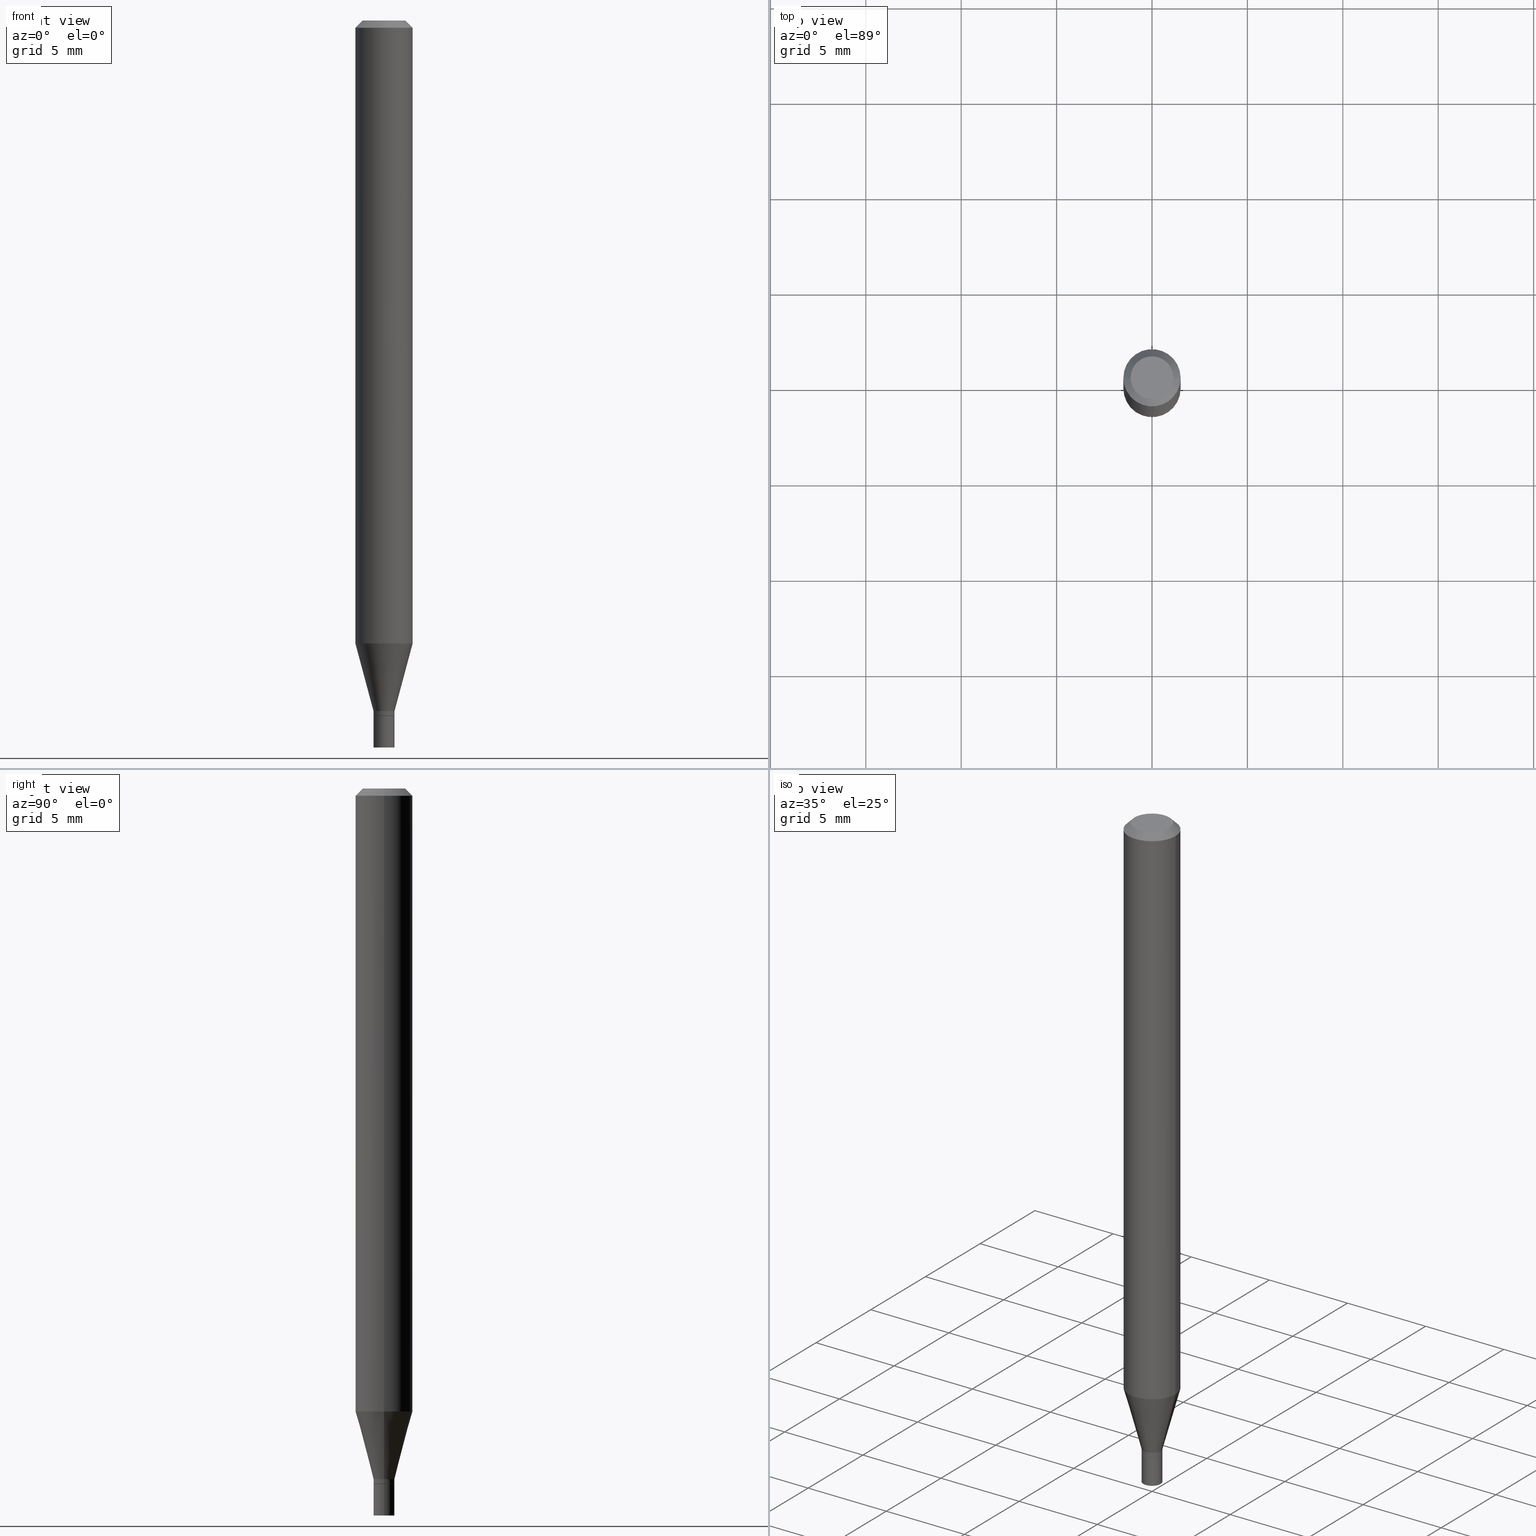
[diagram: canonical four-view strip — front | top / right | iso, engineering-drawing reading convention]
A machine part, canonical four-view strip (front | top / right | iso — engineering-drawing reading convention). The complete STEP part file that produces these views, byte-faithful:
ISO-10303-21;
HEADER;
FILE_DESCRIPTION (( 'STEP AP203' ),
    '1' );
FILE_NAME ('09282.STEP',
    '2024-03-14T18:18:52',
    ( '' ),
    ( '' ),
    'SwSTEP 2.0',
    'SolidWorks 2023',
    '' );
FILE_SCHEMA (( 'CONFIG_CONTROL_DESIGN' ));
ENDSEC;

DATA;
#1 = DIRECTION ( 'NONE',  ( 1.000000000000000000, -6.982962677686269866E-15, 0.000000000000000000 ) ) ;
#2 = AXIS2_PLACEMENT_3D ( 'NONE', #329, #108, #1 ) ;
#3 = AXIS2_PLACEMENT_3D ( 'NONE', #307, #148, #268 ) ;
#4 = CARTESIAN_POINT ( 'NONE',  ( 0.02164999999999991584, -5.126542049823390117E-15, -1.425000000000000266 ) ) ;
#5 = CARTESIAN_POINT ( 'NONE',  ( 0.000000000000000000, 0.000000000000000000, 0.000000000000000000 ) ) ;
#6 = AXIS2_PLACEMENT_3D ( 'NONE', #21, #282, #125 ) ;
#7 = EDGE_LOOP ( 'NONE', ( #410, #218, #166, #262 ) ) ;
#8 = EDGE_CURVE ( 'NONE', #136, #305, #292, .T. ) ;
#9 = DIRECTION ( 'NONE',  ( 1.000000000000000000, -6.982962677686266711E-15, 4.876176775795936353E-29 ) ) ;
#10 = ORIENTED_EDGE ( 'NONE', *, *, #8, .F. ) ;
#11 = DIRECTION ( 'NONE',  ( -2.445468806185136597E-29, 3.491481338843145583E-15, 1.000000000000000000 ) ) ;
#12 = ORIENTED_EDGE ( 'NONE', *, *, #106, .F. ) ;
#13 = DIRECTION ( 'NONE',  ( 1.000000000000000000, -6.982962677686267499E-15, 4.876176775795936353E-29 ) ) ;
#14 = DATE_AND_TIME ( #437, #58 ) ;
#15 = CARTESIAN_POINT ( 'NONE',  ( 3.143457691459330650E-29, -4.488024480792461155E-15, -1.285421299796924099 ) ) ;
#16 = VECTOR ( 'NONE', #145, 39.37007874015748143 ) ;
#17 = DIRECTION ( 'NONE',  ( -2.445468806185136597E-29, 3.491481338843145583E-15, 1.000000000000000000 ) ) ;
#18 = DIRECTION ( 'NONE',  ( 2.438088387897960049E-29, -3.491481338843145188E-15, -1.000000000000000000 ) ) ;
#19 = CARTESIAN_POINT ( 'NONE',  ( 3.576687321579069994E-29, -5.368277968210015545E-15, -1.500000000000000222 ) ) ;
#20 = DATE_AND_TIME ( #117, #66 ) ;
#21 = CARTESIAN_POINT ( 'NONE',  ( 0.000000000000000000, 0.000000000000000000, 0.000000000000000000 ) ) ;
#22 = CARTESIAN_POINT ( 'NONE',  ( -0.02164999999999991584, -4.821528405559422650E-15, -1.425000000000000266 ) ) ;
#23 = EDGE_LOOP ( 'NONE', ( #43, #320, #103, #412 ) ) ;
#24 = MECHANICAL_CONTEXT ( 'NONE', #303, 'mechanical' ) ;
#25 = CARTESIAN_POINT ( 'NONE',  ( 3.509247736875672093E-29, -5.010275721239914824E-15, -1.435000000000000497 ) ) ;
#26 =( GEOMETRIC_REPRESENTATION_CONTEXT ( 3 ) GLOBAL_UNCERTAINTY_ASSIGNED_CONTEXT ( ( #403 ) ) GLOBAL_UNIT_ASSIGNED_CONTEXT ( ( #358, #255, #400 ) ) REPRESENTATION_CONTEXT ( 'NONE', 'WORKASPACE' ) );
#27 = ORIENTED_EDGE ( 'NONE', *, *, #206, .T. ) ;
#28 = EDGE_CURVE ( 'NONE', #305, #136, #246, .T. ) ;
#29 = APPROVAL_DATE_TIME ( #59, #107 ) ;
#30 = DIRECTION ( 'NONE',  ( 0.7071067811865537900, -7.319954787623276556E-15, -0.7071067811865412445 ) ) ;
#31 = EDGE_LOOP ( 'NONE', ( #344, #394, #276, #185 ) ) ;
#32 = PLANE ( 'NONE',  #388 ) ;
#33 = AXIS2_PLACEMENT_3D ( 'NONE', #47, #432, #366 ) ;
#34 = CC_DESIGN_APPROVAL ( #107, ( #336 ) ) ;
#35 = ORIENTED_EDGE ( 'NONE', *, *, #200, .T. ) ;
#36 = APPROVAL_STATUS ( 'not_yet_approved' ) ;
#37 = EDGE_CURVE ( 'NONE', #188, #269, #402, .T. ) ;
#38 = LINE ( 'NONE', #423, #225 ) ;
#39 = CARTESIAN_POINT ( 'NONE',  ( -0.02164999999999991584, -4.444988700442772550E-15, -1.425000000000000266 ) ) ;
#40 = PERSON_AND_ORGANIZATION ( #161, #367 ) ;
#41 = ADVANCED_FACE ( 'NONE', ( #153 ), #332, .F. ) ;
#42 = DIRECTION ( 'NONE',  ( 0.7071067811865656694, -2.468850131082446387E-15, 0.7071067811865294761 ) ) ;
#43 = ORIENTED_EDGE ( 'NONE', *, *, #288, .T. ) ;
#44 = CARTESIAN_POINT ( 'NONE',  ( -0.02114999999999999519, -4.859995932626654409E-15, -1.435000000000000497 ) ) ;
#45 = EDGE_LOOP ( 'NONE', ( #27, #308, #204, #140 ) ) ;
#46 = EDGE_CURVE ( 'NONE', #372, #305, #337, .T. ) ;
#47 = CARTESIAN_POINT ( 'NONE',  ( 3.668203209277704895E-29, -5.237222008264718177E-15, -1.500000000000000222 ) ) ;
#48 = AXIS2_PLACEMENT_3D ( 'NONE', #220, #421, #167 ) ;
#49 = EDGE_LOOP ( 'NONE', ( #375, #244, #217, #132 ) ) ;
#50 = ORIENTED_EDGE ( 'NONE', *, *, #67, .F. ) ;
#51 = DIRECTION ( 'NONE',  ( -2.438088387897960049E-29, 3.491481338843145188E-15, 1.000000000000000000 ) ) ;
#52 = DIRECTION ( 'NONE',  ( 1.000000000000000000, -6.982962677686266711E-15, 0.000000000000000000 ) ) ;
#53 = CARTESIAN_POINT ( 'NONE',  ( 3.484793048813820547E-29, -4.975360907851483175E-15, -1.425000000000000266 ) ) ;
#54 = DIRECTION ( 'NONE',  ( -2.445468806185136877E-29, 3.491481338843145188E-15, 1.000000000000000000 ) ) ;
#55 = CC_DESIGN_DATE_AND_TIME_ASSIGNMENT ( #139, #434, ( #300 ) ) ;
#56 = CYLINDRICAL_SURFACE ( 'NONE', #287, 0.02165000000000005115 ) ;
#57 = EDGE_CURVE ( 'NONE', #209, #137, #162, .T. ) ;
#58 = LOCAL_TIME ( 14, 18, 52.00000000000000000, #426 ) ;
#59 = DATE_AND_TIME ( #119, #234 ) ;
#60 = DIRECTION ( 'NONE',  ( 1.000000000000000000, -6.982962677686267499E-15, 4.876176775795936353E-29 ) ) ;
#61 = CIRCLE ( 'NONE', #319, 0.05904999999999999832 ) ;
#62 = CIRCLE ( 'NONE', #352, 0.04404999999999999888 ) ;
#63 = CYLINDRICAL_SURFACE ( 'NONE', #173, 0.05904999999999999832 ) ;
#64 = VECTOR ( 'NONE', #42, 39.37007874015748143 ) ;
#65 = ADVANCED_FACE ( 'NONE', ( #442 ), #151, .T. ) ;
#66 = LOCAL_TIME ( 14, 18, 52.00000000000000000, #301 ) ;
#67 = EDGE_CURVE ( 'NONE', #272, #136, #446, .T. ) ;
#68 = ORIENTED_EDGE ( 'NONE', *, *, #110, .F. ) ;
#69 = EDGE_CURVE ( 'NONE', #291, #102, #172, .T. ) ;
#70 = EDGE_LOOP ( 'NONE', ( #390, #202 ) ) ;
#71 = AXIS2_PLACEMENT_3D ( 'NONE', #422, #182, #454 ) ;
#72 = ORIENTED_EDGE ( 'NONE', *, *, #57, .T. ) ;
#73 = EDGE_CURVE ( 'NONE', #227, #305, #78, .T. ) ;
#74 = CARTESIAN_POINT ( 'NONE',  ( 0.000000000000000000, 0.000000000000000000, 0.000000000000000000 ) ) ;
#75 = ADVANCED_FACE ( 'NONE', ( #335 ), #56, .T. ) ;
#76 = CC_DESIGN_PERSON_AND_ORGANIZATION_ASSIGNMENT ( #177, #316, ( #313 ) ) ;
#77 = EDGE_CURVE ( 'NONE', #364, #136, #230, .T. ) ;
#78 = LINE ( 'NONE', #371, #414 ) ;
#79 = CONICAL_SURFACE ( 'NONE', #381, 0.02164999999999991584, 0.2617993877991499629 ) ;
#80 = DIRECTION ( 'NONE',  ( -0.7071067811865537900, 2.468850131082322536E-15, -0.7071067811865412445 ) ) ;
#81 = CARTESIAN_POINT ( 'NONE',  ( -0.02164999999999999564, -4.969916362460255186E-15, -1.435000000000000053 ) ) ;
#82 = ORIENTED_EDGE ( 'NONE', *, *, #77, .T. ) ;
#83 = EDGE_CURVE ( 'NONE', #364, #227, #61, .T. ) ;
#84 = CARTESIAN_POINT ( 'NONE',  ( -0.05904999999999999832, -1.850622864971215216E-15, -0.01499999999999999944 ) ) ;
#85 = AXIS2_PLACEMENT_3D ( 'NONE', #5, #131, #9 ) ;
#86 = ORIENTED_EDGE ( 'NONE', *, *, #453, .F. ) ;
#87 = EDGE_CURVE ( 'NONE', #259, #137, #289, .T. ) ;
#88 = EDGE_LOOP ( 'NONE', ( #124, #431, #464, #68 ) ) ;
#89 = DIRECTION ( 'NONE',  ( 2.438088387897960049E-29, -3.491481338843145188E-15, -1.000000000000000000 ) ) ;
#90 = CIRCLE ( 'NONE', #331, 0.05904999999999999832 ) ;
#91 = DIRECTION ( 'NONE',  ( 1.000000000000000000, -6.982962677686265922E-15, 4.888540261209747396E-29 ) ) ;
#92 = ORIENTED_EDGE ( 'NONE', *, *, #83, .T. ) ;
#93 = VECTOR ( 'NONE', #80, 39.37007874015748143 ) ;
#94 = VECTOR ( 'NONE', #363, 39.37007874015748143 ) ;
#95 = FACE_OUTER_BOUND ( 'NONE', #49, .T. ) ;
#96 = CYLINDRICAL_SURFACE ( 'NONE', #452, 0.05904999999999999832 ) ;
#97 = FACE_OUTER_BOUND ( 'NONE', #256, .T. ) ;
#98 = ORIENTED_EDGE ( 'NONE', *, *, #37, .T. ) ;
#99 = COORDINATED_UNIVERSAL_TIME_OFFSET ( 5, 0, .BEHIND. ) ;
#100 = DIRECTION ( 'NONE',  ( 1.000000000000000000, -6.982962677686269866E-15, 0.000000000000000000 ) ) ;
#101 = EDGE_CURVE ( 'NONE', #259, #315, #435, .T. ) ;
#102 = VERTEX_POINT ( 'NONE', #285 ) ;
#103 = ORIENTED_EDGE ( 'NONE', *, *, #83, .F. ) ;
#104 = CARTESIAN_POINT ( 'NONE',  ( 3.508025002472578731E-29, -5.008529980570492532E-15, -1.434500000000000330 ) ) ;
#105 = CIRCLE ( 'NONE', #134, 0.02165000000000019340 ) ;
#106 = EDGE_CURVE ( 'NONE', #315, #259, #113, .T. ) ;
#107 = APPROVAL ( #154, 'UNSPECIFIED' ) ;
#108 = DIRECTION ( 'NONE',  ( -2.445468806185136597E-29, 3.491481338843145583E-15, 1.000000000000000000 ) ) ;
#109 = PLANE ( 'NONE',  #293 ) ;
#110 = EDGE_CURVE ( 'NONE', #269, #188, #223, .T. ) ;
#111 = COORDINATED_UNIVERSAL_TIME_OFFSET ( 5, 0, .BEHIND. ) ;
#112 = CARTESIAN_POINT ( 'NONE',  ( -0.05904999999999999832, 3.599717260347268549E-16, -0.01499999999999999944 ) ) ;
#113 = CIRCLE ( 'NONE', #48, 0.02114999999999999519 ) ;
#114 = AXIS2_PLACEMENT_3D ( 'NONE', #249, #311, #383 ) ;
#115 = DIRECTION ( 'NONE',  ( -2.445468806185136597E-29, 3.491481338843145583E-15, 1.000000000000000000 ) ) ;
#116 = ORIENTED_EDGE ( 'NONE', *, *, #46, .T. ) ;
#117 = CALENDAR_DATE ( 2024, 14, 3 ) ;
#118 = PERSON_AND_ORGANIZATION ( #161, #367 ) ;
#119 = CALENDAR_DATE ( 2024, 14, 3 ) ;
#120 = ADVANCED_BREP_SHAPE_REPRESENTATION ( '09282', ( #348, #191, #6 ), #26 ) ;
#121 = EDGE_LOOP ( 'NONE', ( #92, #165, #10, #397 ) ) ;
#122 = LOCAL_TIME ( 14, 18, 52.00000000000000000, #99 ) ;
#123 = ADVANCED_FACE ( 'NONE', ( #429 ), #79, .T. ) ;
#124 = ORIENTED_EDGE ( 'NONE', *, *, #346, .F. ) ;
#125 = DIRECTION ( 'NONE',  ( 1.000000000000000000, 0.000000000000000000, 0.000000000000000000 ) ) ;
#126 = ADVANCED_FACE ( 'NONE', ( #447 ), #32, .F. ) ;
#127 = CC_DESIGN_SECURITY_CLASSIFICATION ( #300, ( #336 ) ) ;
#128 = CARTESIAN_POINT ( 'NONE',  ( -0.02164999999999999564, 1.538325022920616592E-16, -1.064949447040186851E-30 ) ) ;
#129 = CARTESIAN_POINT ( 'NONE',  ( 0.000000000000000000, 0.000000000000000000, 0.000000000000000000 ) ) ;
#130 = DIRECTION ( 'NONE',  ( 1.000000000000000000, -6.982962677686245411E-15, 0.000000000000000000 ) ) ;
#131 = DIRECTION ( 'NONE',  ( -2.445468806185136597E-29, 3.491481338843145583E-15, 1.000000000000000000 ) ) ;
#132 = ORIENTED_EDGE ( 'NONE', *, *, #57, .F. ) ;
#133 = DIRECTION ( 'NONE',  ( -2.445468806185136597E-29, 3.491481338843145583E-15, 1.000000000000000000 ) ) ;
#134 = AXIS2_PLACEMENT_3D ( 'NONE', #104, #17, #146 ) ;
#135 = AXIS2_PLACEMENT_3D ( 'NONE', #444, #115, #271 ) ;
#136 = VERTEX_POINT ( 'NONE', #211 ) ;
#137 = VERTEX_POINT ( 'NONE', #387 ) ;
#138 = LINE ( 'NONE', #294, #207 ) ;
#139 = DATE_AND_TIME ( #396, #122 ) ;
#140 = ORIENTED_EDGE ( 'NONE', *, *, #461, .F. ) ;
#141 = SHAPE_DEFINITION_REPRESENTATION ( #168, #120 ) ;
#142 = DIRECTION ( 'NONE',  ( -2.445468806185136597E-29, 3.491481338843145583E-15, 1.000000000000000000 ) ) ;
#143 = CLOSED_SHELL ( 'NONE', ( #321, #65, #296, #342, #123, #247, #413, #399, #41, #378, #158, #75 ) ) ;
#144 = DIRECTION ( 'NONE',  ( 0.2588190451025212391, 1.565188264969622362E-15, 0.9659258262890679791 ) ) ;
#145 = DIRECTION ( 'NONE',  ( -2.445468806185136877E-29, 3.491481338843145188E-15, 1.000000000000000000 ) ) ;
#146 = DIRECTION ( 'NONE',  ( 1.000000000000000000, -6.982962677686250144E-15, 0.000000000000000000 ) ) ;
#147 = DIRECTION ( 'NONE',  ( 1.000000000000000000, -6.982962677686265922E-15, 4.876176775795935793E-29 ) ) ;
#148 = DIRECTION ( 'NONE',  ( -2.445468806185136597E-29, 3.491481338843145583E-15, 1.000000000000000000 ) ) ;
#149 = CARTESIAN_POINT ( 'NONE',  ( 0.04404999999999999888, -3.798447818264464516E-16, -2.618358350975129121E-16 ) ) ;
#150 = EDGE_LOOP ( 'NONE', ( #356, #156 ) ) ;
#151 = CONICAL_SURFACE ( 'NONE', #270, 0.02114999999999999519, 0.7853981633974739252 ) ;
#152 = DIRECTION ( 'NONE',  ( -2.445468806185136597E-29, 3.491481338843145583E-15, 1.000000000000000000 ) ) ;
#153 = FACE_OUTER_BOUND ( 'NONE', #70, .T. ) ;
#154 = APPROVAL_STATUS ( 'not_yet_approved' ) ;
#155 = DIRECTION ( 'NONE',  ( 1.000000000000000000, -6.982962677686250144E-15, 0.000000000000000000 ) ) ;
#156 = ORIENTED_EDGE ( 'NONE', *, *, #69, .F. ) ;
#157 = PERSON_AND_ORGANIZATION ( #161, #367 ) ;
#158 = ADVANCED_FACE ( 'NONE', ( #95 ), #279, .T. ) ;
#159 = DIRECTION ( 'NONE',  ( -2.445468806185136597E-29, 3.491481338843145583E-15, 1.000000000000000000 ) ) ;
#160 = CARTESIAN_POINT ( 'NONE',  ( 1.511811419719427368E-16, 0.02164999999999498576, -1.435000000000000053 ) ) ;
#161 = PERSON ( 'UNSPECIFIED', 'UNSPECIFIED', 'UNSPECIFIED', ('UNSPECIFIED'), ('UNSPECIFIED'), ('UNSPECIFIED') ) ;
#162 = CIRCLE ( 'NONE', #212, 0.02165000000000019340 ) ;
#163 = CC_DESIGN_APPROVAL ( #201, ( #313 ) ) ;
#164 = CYLINDRICAL_SURFACE ( 'NONE', #85, 0.02165000000000005115 ) ;
#165 = ORIENTED_EDGE ( 'NONE', *, *, #73, .T. ) ;
#166 = ORIENTED_EDGE ( 'NONE', *, *, #411, .T. ) ;
#167 = DIRECTION ( 'NONE',  ( 1.000000000000000000, -6.982962677686245411E-15, 0.000000000000000000 ) ) ;
#168 = PRODUCT_DEFINITION_SHAPE ( 'NONE', 'NONE',  #313 ) ;
#169 = COORDINATED_UNIVERSAL_TIME_OFFSET ( 5, 0, .BEHIND. ) ;
#170 = DIRECTION ( 'NONE',  ( -2.445468806185136597E-29, 3.491481338843145583E-15, 1.000000000000000000 ) ) ;
#171 = CARTESIAN_POINT ( 'NONE',  ( 0.000000000000000000, 0.000000000000000000, 0.000000000000000000 ) ) ;
#172 = CIRCLE ( 'NONE', #3, 0.02164999999999999564 ) ;
#173 = AXIS2_PLACEMENT_3D ( 'NONE', #171, #460, #176 ) ;
#174 = APPLICATION_PROTOCOL_DEFINITION ( 'international standard', 'config_control_design', 1994, #389 ) ;
#175 = DIRECTION ( 'NONE',  ( 1.000000000000000000, -6.982962677686273021E-15, 0.000000000000000000 ) ) ;
#176 = DIRECTION ( 'NONE',  ( 1.000000000000000000, -6.982962677686266711E-15, 4.876176775795936353E-29 ) ) ;
#177 = PERSON_AND_ORGANIZATION ( #161, #367 ) ;
#178 = LENGTH_MEASURE_WITH_UNIT ( LENGTH_MEASURE( 0.02539999999999999897 ), #359 );
#179 = PLANE ( 'NONE',  #114 ) ;
#180 = ADVANCED_FACE ( 'NONE', ( #417 ), #353, .T. ) ;
#181 = PRODUCT_RELATED_PRODUCT_CATEGORY ( 'detail', '', ( #243 ) ) ;
#182 = DIRECTION ( 'NONE',  ( -2.445468806185136597E-29, 3.491481338843145583E-15, 1.000000000000000000 ) ) ;
#183 = ORIENTED_EDGE ( 'NONE', *, *, #8, .T. ) ;
#184 = VECTOR ( 'NONE', #30, 39.37007874015748143 ) ;
#185 = ORIENTED_EDGE ( 'NONE', *, *, #87, .F. ) ;
#186 = ADVANCED_FACE ( 'NONE', ( #441 ), #401, .T. ) ;
#187 = FACE_OUTER_BOUND ( 'NONE', #377, .T. ) ;
#188 = VERTEX_POINT ( 'NONE', #455 ) ;
#189 = CARTESIAN_POINT ( 'NONE',  ( 3.668203209277705088E-31, -5.237222008264718399E-17, -0.01499999999999999944 ) ) ;
#190 = CARTESIAN_POINT ( 'NONE',  ( -0.05904999999999999832, -4.068448995326122451E-15, -1.285421299796924099 ) ) ;
#191 = MANIFOLD_SOLID_BREP ( 'Body-Move/Copy2[2]', #143 ) ;
#192 = EDGE_CURVE ( 'NONE', #137, #451, #278, .T. ) ;
#193 = DIRECTION ( 'NONE',  ( -2.445468806185136597E-29, 3.491481338843145583E-15, 1.000000000000000000 ) ) ;
#194 = DIRECTION ( 'NONE',  ( -2.445468806185136597E-29, 3.491481338843145583E-15, 1.000000000000000000 ) ) ;
#195 = DESIGN_CONTEXT ( 'detailed design', #389, 'design' ) ;
#196 = FACE_OUTER_BOUND ( 'NONE', #347, .T. ) ;
#197 = AXIS2_PLACEMENT_3D ( 'NONE', #129, #133, #13 ) ;
#198 = AXIS2_PLACEMENT_3D ( 'NONE', #457, #280, #350 ) ;
#199 = ORIENTED_EDGE ( 'NONE', *, *, #28, .F. ) ;
#200 = EDGE_CURVE ( 'NONE', #209, #322, #257, .T. ) ;
#201 = APPROVAL ( #36, 'UNSPECIFIED' ) ;
#202 = ORIENTED_EDGE ( 'NONE', *, *, #453, .T. ) ;
#203 = PERSON_AND_ORGANIZATION_ROLE ( 'classification_officer' ) ;
#204 = ORIENTED_EDGE ( 'NONE', *, *, #37, .F. ) ;
#205 = AXIS2_PLACEMENT_3D ( 'NONE', #189, #392, #228 ) ;
#206 = EDGE_CURVE ( 'NONE', #102, #291, #458, .T. ) ;
#207 = VECTOR ( 'NONE', #427, 39.37007874015748143 ) ;
#208 = CC_DESIGN_PERSON_AND_ORGANIZATION_ASSIGNMENT ( #40, #210, ( #243 ) ) ;
#209 = VERTEX_POINT ( 'NONE', #326 ) ;
#210 = PERSON_AND_ORGANIZATION_ROLE ( 'design_owner' ) ;
#211 = CARTESIAN_POINT ( 'NONE',  ( 0.05904999999999999832, -4.647161662000212105E-16, -0.01499999999999999944 ) ) ;
#212 = AXIS2_PLACEMENT_3D ( 'NONE', #236, #194, #155 ) ;
#213 = AXIS2_PLACEMENT_3D ( 'NONE', #267, #232, #404 ) ;
#214 = EDGE_CURVE ( 'NONE', #322, #451, #312, .T. ) ;
#215 = CARTESIAN_POINT ( 'NONE',  ( 0.05904999999999999832, -4.900368426909834498E-15, -1.285421299796924099 ) ) ;
#216 = CC_DESIGN_PERSON_AND_ORGANIZATION_ASSIGNMENT ( #306, #203, ( #300 ) ) ;
#217 = ORIENTED_EDGE ( 'NONE', *, *, #87, .T. ) ;
#218 = ORIENTED_EDGE ( 'NONE', *, *, #214, .T. ) ;
#219 = DIRECTION ( 'NONE',  ( -2.445468806185136877E-29, 3.491481338843145188E-15, 1.000000000000000000 ) ) ;
#220 = CARTESIAN_POINT ( 'NONE',  ( 3.509247736875672093E-29, -5.010275721239914824E-15, -1.435000000000000497 ) ) ;
#221 = CARTESIAN_POINT ( 'NONE',  ( 0.000000000000000000, 0.000000000000000000, 0.000000000000000000 ) ) ;
#222 = ORIENTED_EDGE ( 'NONE', *, *, #28, .T. ) ;
#223 = CIRCLE ( 'NONE', #240, 0.02164999999999999564 ) ;
#224 = CARTESIAN_POINT ( 'NONE',  ( -0.02164999999999999564, -4.969916362460255186E-15, -1.500000000000000222 ) ) ;
#225 = VECTOR ( 'NONE', #144, 39.37007874015748854 ) ;
#226 = LINE ( 'NONE', #44, #94 ) ;
#227 = VERTEX_POINT ( 'NONE', #190 ) ;
#228 = DIRECTION ( 'NONE',  ( 1.000000000000000000, -6.982962677686266711E-15, 0.000000000000000000 ) ) ;
#229 = EDGE_CURVE ( 'NONE', #137, #209, #105, .T. ) ;
#230 = LINE ( 'NONE', #328, #16 ) ;
#231 = PERSON_AND_ORGANIZATION ( #161, #367 ) ;
#232 = DIRECTION ( 'NONE',  ( -2.445468806185136597E-29, 3.491481338843145583E-15, 1.000000000000000000 ) ) ;
#233 = AXIS2_PLACEMENT_3D ( 'NONE', #314, #465, #130 ) ;
#234 = LOCAL_TIME ( 14, 18, 52.00000000000000000, #111 ) ;
#235 = EDGE_CURVE ( 'NONE', #322, #227, #237, .T. ) ;
#236 = CARTESIAN_POINT ( 'NONE',  ( 3.508025002472578731E-29, -5.008529980570492532E-15, -1.434500000000000330 ) ) ;
#237 = LINE ( 'NONE', #22, #374 ) ;
#238 = PERSON_AND_ORGANIZATION_ROLE ( 'design_supplier' ) ;
#239 = APPROVAL_ROLE ( '' ) ;
#240 = AXIS2_PLACEMENT_3D ( 'NONE', #415, #170, #100 ) ;
#241 = ORIENTED_EDGE ( 'NONE', *, *, #288, .F. ) ;
#242 = DIRECTION ( 'NONE',  ( -2.445468806185136597E-29, 3.491481338843145583E-15, 1.000000000000000000 ) ) ;
#243 = PRODUCT ( '09282', '09282', '', ( #24 ) ) ;
#244 = ORIENTED_EDGE ( 'NONE', *, *, #106, .T. ) ;
#245 = APPROVAL_ROLE ( '' ) ;
#246 = CIRCLE ( 'NONE', #205, 0.05904999999999999832 ) ;
#247 = ADVANCED_FACE ( 'NONE', ( #365 ), #398, .T. ) ;
#248 = CIRCLE ( 'NONE', #405, 0.04404999999999999888 ) ;
#249 = CARTESIAN_POINT ( 'NONE',  ( 3.509247736875672093E-29, -5.010275721239914824E-15, -1.435000000000000497 ) ) ;
#250 = ADVANCED_FACE ( 'NONE', ( #264 ), #109, .F. ) ;
#251 = DATE_AND_TIME ( #462, #424 ) ;
#252 = CARTESIAN_POINT ( 'NONE',  ( -0.04404999999999999888, 3.337856159934029701E-16, -2.618358350975175960E-16 ) ) ;
#253 = EDGE_LOOP ( 'NONE', ( #409, #72, #380, #407 ) ) ;
#254 = VECTOR ( 'NONE', #219, 39.37007874015748143 ) ;
#255 =( NAMED_UNIT ( * ) PLANE_ANGLE_UNIT ( ) SI_UNIT ( $, .RADIAN. ) );
#256 = EDGE_LOOP ( 'NONE', ( #338, #12 ) ) ;
#257 = LINE ( 'NONE', #393, #254 ) ;
#258 = EDGE_CURVE ( 'NONE', #227, #364, #90, .T. ) ;
#259 = VERTEX_POINT ( 'NONE', #370 ) ;
#260 = APPROVAL_DATE_TIME ( #14, #420 ) ;
#261 = CARTESIAN_POINT ( 'NONE',  ( 3.484793048813820547E-29, -4.975360907851483175E-15, -1.425000000000000266 ) ) ;
#262 = ORIENTED_EDGE ( 'NONE', *, *, #258, .F. ) ;
#263 = AXIS2_PLACEMENT_3D ( 'NONE', #369, #159, #60 ) ;
#264 = FACE_OUTER_BOUND ( 'NONE', #150, .T. ) ;
#265 = APPROVAL_PERSON_ORGANIZATION ( #231, #420, #395 ) ;
#266 = DIRECTION ( 'NONE',  ( 1.000000000000000000, -6.982962677686265922E-15, 4.888540261209747396E-29 ) ) ;
#267 = CARTESIAN_POINT ( 'NONE',  ( 3.484793048813820547E-29, -4.975360907851483175E-15, -1.425000000000000266 ) ) ;
#268 = DIRECTION ( 'NONE',  ( 1.000000000000000000, -6.982962677686269866E-15, 0.000000000000000000 ) ) ;
#269 = VERTEX_POINT ( 'NONE', #81 ) ;
#270 = AXIS2_PLACEMENT_3D ( 'NONE', #25, #304, #274 ) ;
#271 = DIRECTION ( 'NONE',  ( 1.000000000000000000, -6.982962677686250144E-15, 0.000000000000000000 ) ) ;
#272 = VERTEX_POINT ( 'NONE', #149 ) ;
#273 = DATE_TIME_ROLE ( 'creation_date' ) ;
#274 = DIRECTION ( 'NONE',  ( 1.000000000000000000, -6.982962677686245411E-15, 0.000000000000000000 ) ) ;
#275 = APPROVAL_PERSON_ORGANIZATION ( #349, #201, #245 ) ;
#276 = ORIENTED_EDGE ( 'NONE', *, *, #229, .F. ) ;
#277 = ORIENTED_EDGE ( 'NONE', *, *, #46, .F. ) ;
#278 = LINE ( 'NONE', #418, #450 ) ;
#279 = CONICAL_SURFACE ( 'NONE', #71, 0.02114999999999999519, 0.7853981633974739252 ) ;
#280 = DIRECTION ( 'NONE',  ( 2.445468806185136597E-29, -3.491481338843145583E-15, -1.000000000000000000 ) ) ;
#281 = VECTOR ( 'NONE', #283, 39.37007874015748143 ) ;
#282 = DIRECTION ( 'NONE',  ( 0.000000000000000000, 0.000000000000000000, 1.000000000000000000 ) ) ;
#283 = DIRECTION ( 'NONE',  ( -2.445468806185136877E-29, 3.491481338843145188E-15, 1.000000000000000000 ) ) ;
#284 = ORIENTED_EDGE ( 'NONE', *, *, #67, .T. ) ;
#285 = CARTESIAN_POINT ( 'NONE',  ( 0.02164999999999999564, -5.388403150236625908E-15, -1.500000000000000222 ) ) ;
#286 = ORIENTED_EDGE ( 'NONE', *, *, #368, .F. ) ;
#287 = AXIS2_PLACEMENT_3D ( 'NONE', #74, #152, #430 ) ;
#288 = EDGE_CURVE ( 'NONE', #451, #322, #443, .T. ) ;
#289 = LINE ( 'NONE', #357, #64 ) ;
#290 = EDGE_LOOP ( 'NONE', ( #86, #284, #183, #277 ) ) ;
#291 = VERTEX_POINT ( 'NONE', #224 ) ;
#292 = CIRCLE ( 'NONE', #373, 0.05904999999999999832 ) ;
#293 = AXIS2_PLACEMENT_3D ( 'NONE', #19, #51, #147 ) ;
#294 = CARTESIAN_POINT ( 'NONE',  ( 0.02164999999999999564, -1.511811419719076571E-16, 1.055692271959819963E-30 ) ) ;
#295 = CARTESIAN_POINT ( 'NONE',  ( 3.143457691459330650E-29, -4.488024480792461155E-15, -1.285421299796924099 ) ) ;
#296 = ADVANCED_FACE ( 'NONE', ( #362 ), #361, .T. ) ;
#297 = CC_DESIGN_PERSON_AND_ORGANIZATION_ASSIGNMENT ( #118, #238, ( #336 ) ) ;
#298 = DIRECTION ( 'NONE',  ( 1.000000000000000000, -6.982962677686273021E-15, 0.000000000000000000 ) ) ;
#299 = PERSON_AND_ORGANIZATION ( #161, #367 ) ;
#300 = SECURITY_CLASSIFICATION ( '', '', #340 ) ;
#301 = COORDINATED_UNIVERSAL_TIME_OFFSET ( 5, 0, .BEHIND. ) ;
#302 = CARTESIAN_POINT ( 'NONE',  ( 3.075995059520799729E-16, 0.04404999999999999888, -2.847176705247982421E-16 ) ) ;
#303 = APPLICATION_CONTEXT ( 'configuration controlled 3d designs of mechanical parts and assemblies' ) ;
#304 = DIRECTION ( 'NONE',  ( -2.445468806185136597E-29, 3.491481338843145583E-15, 1.000000000000000000 ) ) ;
#305 = VERTEX_POINT ( 'NONE', #84 ) ;
#306 = PERSON_AND_ORGANIZATION ( #161, #367 ) ;
#307 = CARTESIAN_POINT ( 'NONE',  ( 3.668203209277704895E-29, -5.237222008264718177E-15, -1.500000000000000222 ) ) ;
#308 = ORIENTED_EDGE ( 'NONE', *, *, #346, .T. ) ;
#309 = AXIS2_PLACEMENT_3D ( 'NONE', #323, #379, #448 ) ;
#310 = CC_DESIGN_DATE_AND_TIME_ASSIGNMENT ( #20, #273, ( #313 ) ) ;
#311 = DIRECTION ( 'NONE',  ( -2.438088387897960049E-29, 3.491481338843145188E-15, 1.000000000000000000 ) ) ;
#312 = CIRCLE ( 'NONE', #345, 0.02164999999999991584 ) ;
#313 = PRODUCT_DEFINITION ( 'UNKNOWN', '', #336, #195 ) ;
#314 = CARTESIAN_POINT ( 'NONE',  ( 3.509247736875672093E-29, -5.010275721239914824E-15, -1.435000000000000497 ) ) ;
#315 = VERTEX_POINT ( 'NONE', #343 ) ;
#316 = PERSON_AND_ORGANIZATION_ROLE ( 'creator' ) ;
#317 = DIRECTION ( 'NONE',  ( -1.000000000000000000, 6.982962677686265922E-15, -4.876176775795935793E-29 ) ) ;
#318 = APPROVAL_STATUS ( 'not_yet_approved' ) ;
#319 = AXIS2_PLACEMENT_3D ( 'NONE', #295, #354, #175 ) ;
#320 = ORIENTED_EDGE ( 'NONE', *, *, #235, .T. ) ;
#321 = ADVANCED_FACE ( 'NONE', ( #196 ), #164, .T. ) ;
#322 = VERTEX_POINT ( 'NONE', #39 ) ;
#323 = CARTESIAN_POINT ( 'NONE',  ( 3.668203209277705088E-31, -5.237222008264718399E-17, -0.01499999999999999944 ) ) ;
#324 = DIRECTION ( 'NONE',  ( 1.000000000000000000, -6.982962677686266711E-15, 4.876176775795936353E-29 ) ) ;
#325 = ORIENTED_EDGE ( 'NONE', *, *, #73, .F. ) ;
#326 = CARTESIAN_POINT ( 'NONE',  ( -0.02165000000000019340, -4.854697478278429640E-15, -1.434500000000000330 ) ) ;
#327 = DIRECTION ( 'NONE',  ( -2.445468806185136597E-29, 3.491481338843145583E-15, 1.000000000000000000 ) ) ;
#328 = CARTESIAN_POINT ( 'NONE',  ( 0.05904999999999999832, -4.123439461173740327E-16, 2.879382386107500220E-30 ) ) ;
#329 = CARTESIAN_POINT ( 'NONE',  ( 3.509247736875671532E-29, -5.010275721239914035E-15, -1.435000000000000053 ) ) ;
#330 = CLOSED_SHELL ( 'NONE', ( #180, #250, #186, #126 ) ) ;
#331 = AXIS2_PLACEMENT_3D ( 'NONE', #15, #142, #298 ) ;
#332 = PLANE ( 'NONE',  #408 ) ;
#333 = DIRECTION ( 'NONE',  ( 1.000000000000000000, -6.982962677686250144E-15, 0.000000000000000000 ) ) ;
#334 = DIMENSIONAL_EXPONENTS ( 1.000000000000000000, 0.000000000000000000, 0.000000000000000000, 0.000000000000000000, 0.000000000000000000, 0.000000000000000000, 0.000000000000000000 ) ;
#335 = FACE_OUTER_BOUND ( 'NONE', #253, .T. ) ;
#336 = PRODUCT_DEFINITION_FORMATION_WITH_SPECIFIED_SOURCE ( 'ANY', '', #243, .NOT_KNOWN. ) ;
#337 = LINE ( 'NONE', #112, #93 ) ;
#338 = ORIENTED_EDGE ( 'NONE', *, *, #101, .F. ) ;
#339 = DIRECTION ( 'NONE',  ( 1.000000000000000000, -6.982962677686250144E-15, 0.000000000000000000 ) ) ;
#340 = SECURITY_CLASSIFICATION_LEVEL ( 'unclassified' ) ;
#341 = CARTESIAN_POINT ( 'NONE',  ( 0.05904999999999999832, -4.574846268510561447E-16, -0.01499999999999999944 ) ) ;
#342 = ADVANCED_FACE ( 'NONE', ( #384 ), #63, .T. ) ;
#343 = CARTESIAN_POINT ( 'NONE',  ( -0.02114999999999999519, -4.857346705452541630E-15, -1.435000000000000497 ) ) ;
#344 = ORIENTED_EDGE ( 'NONE', *, *, #101, .T. ) ;
#345 = AXIS2_PLACEMENT_3D ( 'NONE', #53, #193, #333 ) ;
#346 = EDGE_CURVE ( 'NONE', #291, #269, #463, .T. ) ;
#347 = EDGE_LOOP ( 'NONE', ( #425, #35, #241, #360 ) ) ;
#348 = MANIFOLD_SOLID_BREP ( 'Body-Move/Copy2[1]', #330 ) ;
#349 = PERSON_AND_ORGANIZATION ( #161, #367 ) ;
#350 = DIRECTION ( 'NONE',  ( -1.000000000000000000, 6.982962677686266711E-15, 0.000000000000000000 ) ) ;
#351 = FACE_OUTER_BOUND ( 'NONE', #428, .T. ) ;
#352 = AXIS2_PLACEMENT_3D ( 'NONE', #466, #419, #91 ) ;
#353 = CYLINDRICAL_SURFACE ( 'NONE', #197, 0.02164999999999999564 ) ;
#354 = DIRECTION ( 'NONE',  ( -2.445468806185136597E-29, 3.491481338843145583E-15, 1.000000000000000000 ) ) ;
#355 = ORIENTED_EDGE ( 'NONE', *, *, #258, .T. ) ;
#356 = ORIENTED_EDGE ( 'NONE', *, *, #206, .F. ) ;
#357 = CARTESIAN_POINT ( 'NONE',  ( 0.02114999999999999519, -5.157965381872979548E-15, -1.435000000000000497 ) ) ;
#358 =( CONVERSION_BASED_UNIT ( 'INCH', #178 ) LENGTH_UNIT ( ) NAMED_UNIT ( #334 ) );
#359 =( LENGTH_UNIT ( ) NAMED_UNIT ( * ) SI_UNIT ( $, .METRE. ) );
#360 = ORIENTED_EDGE ( 'NONE', *, *, #192, .F. ) ;
#361 = CONICAL_SURFACE ( 'NONE', #309, 0.05904999999999999832, 0.7853981633974571608 ) ;
#362 = FACE_OUTER_BOUND ( 'NONE', #290, .T. ) ;
#363 = DIRECTION ( 'NONE',  ( -0.7071067811865656694, 7.493145998870420424E-15, 0.7071067811865294761 ) ) ;
#364 = VERTEX_POINT ( 'NONE', #215 ) ;
#365 = FACE_OUTER_BOUND ( 'NONE', #7, .T. ) ;
#366 = DIRECTION ( 'NONE',  ( 1.000000000000000000, -6.982962677686269866E-15, 0.000000000000000000 ) ) ;
#367 = ORGANIZATION ( 'UNSPECIFIED', 'UNSPECIFIED', '' ) ;
#368 = EDGE_CURVE ( 'NONE', #372, #272, #62, .T. ) ;
#369 = CARTESIAN_POINT ( 'NONE',  ( 0.000000000000000000, 0.000000000000000000, 0.000000000000000000 ) ) ;
#370 = CARTESIAN_POINT ( 'NONE',  ( 0.02114999999999999519, -5.157965381872979548E-15, -1.435000000000000497 ) ) ;
#371 = CARTESIAN_POINT ( 'NONE',  ( -0.05904999999999999832, 4.195754854663391478E-16, -2.904631170795521892E-30 ) ) ;
#372 = VERTEX_POINT ( 'NONE', #252 ) ;
#373 = AXIS2_PLACEMENT_3D ( 'NONE', #406, #445, #52 ) ;
#374 = VECTOR ( 'NONE', #439, 39.37007874015748854 ) ;
#375 = ORIENTED_EDGE ( 'NONE', *, *, #416, .F. ) ;
#376 = CC_DESIGN_PERSON_AND_ORGANIZATION_ASSIGNMENT ( #157, #438, ( #336 ) ) ;
#377 = EDGE_LOOP ( 'NONE', ( #325, #355, #82, #199 ) ) ;
#378 = ADVANCED_FACE ( 'NONE', ( #97 ), #179, .F. ) ;
#379 = DIRECTION ( 'NONE',  ( 2.445468806185136597E-29, -3.491481338843145583E-15, -1.000000000000000000 ) ) ;
#380 = ORIENTED_EDGE ( 'NONE', *, *, #192, .T. ) ;
#381 = AXIS2_PLACEMENT_3D ( 'NONE', #261, #242, #339 ) ;
#382 = CC_DESIGN_APPROVAL ( #420, ( #300 ) ) ;
#383 = DIRECTION ( 'NONE',  ( 1.000000000000000000, -6.982962677686265922E-15, 4.876176775795935793E-29 ) ) ;
#384 = FACE_OUTER_BOUND ( 'NONE', #121, .T. ) ;
#385 = DIRECTION ( 'NONE',  ( -2.445468806185136877E-29, 3.491481338843145188E-15, 1.000000000000000000 ) ) ;
#386 = APPROVAL_DATE_TIME ( #251, #201 ) ;
#387 = CARTESIAN_POINT ( 'NONE',  ( 0.02165000000000019340, -5.159711122542401841E-15, -1.434500000000000330 ) ) ;
#388 = AXIS2_PLACEMENT_3D ( 'NONE', #160, #89, #317 ) ;
#389 = APPLICATION_CONTEXT ( 'configuration controlled 3d designs of mechanical parts and assemblies' ) ;
#390 = ORIENTED_EDGE ( 'NONE', *, *, #368, .T. ) ;
#391 = EDGE_LOOP ( 'NONE', ( #98, #449 ) ) ;
#392 = DIRECTION ( 'NONE',  ( -2.445468806185136597E-29, 3.491481338843145583E-15, 1.000000000000000000 ) ) ;
#393 = CARTESIAN_POINT ( 'NONE',  ( -0.02165000000000005115, 1.538325022920620537E-16, -1.064949447040189654E-30 ) ) ;
#394 = ORIENTED_EDGE ( 'NONE', *, *, #416, .T. ) ;
#395 = APPROVAL_ROLE ( '' ) ;
#396 = CALENDAR_DATE ( 2024, 14, 3 ) ;
#397 = ORIENTED_EDGE ( 'NONE', *, *, #77, .F. ) ;
#398 = CONICAL_SURFACE ( 'NONE', #213, 0.02164999999999991584, 0.2617993877991499629 ) ;
#399 = ADVANCED_FACE ( 'NONE', ( #351 ), #436, .T. ) ;
#400 =( NAMED_UNIT ( * ) SI_UNIT ( $, .STERADIAN. ) SOLID_ANGLE_UNIT ( ) );
#401 = CYLINDRICAL_SURFACE ( 'NONE', #263, 0.02164999999999999564 ) ;
#402 = CIRCLE ( 'NONE', #2, 0.02164999999999999564 ) ;
#403 = UNCERTAINTY_MEASURE_WITH_UNIT (LENGTH_MEASURE( 1.000000000000000082E-05 ), #358, 'distance_accuracy_value', 'NONE');
#404 = DIRECTION ( 'NONE',  ( 1.000000000000000000, -6.982962677686250144E-15, 0.000000000000000000 ) ) ;
#405 = AXIS2_PLACEMENT_3D ( 'NONE', #433, #11, #266 ) ;
#406 = CARTESIAN_POINT ( 'NONE',  ( 3.668203209277705088E-31, -5.237222008264718399E-17, -0.01499999999999999944 ) ) ;
#407 = ORIENTED_EDGE ( 'NONE', *, *, #214, .F. ) ;
#408 = AXIS2_PLACEMENT_3D ( 'NONE', #302, #18, #440 ) ;
#409 = ORIENTED_EDGE ( 'NONE', *, *, #200, .F. ) ;
#410 = ORIENTED_EDGE ( 'NONE', *, *, #235, .F. ) ;
#411 = EDGE_CURVE ( 'NONE', #451, #364, #38, .T. ) ;
#412 = ORIENTED_EDGE ( 'NONE', *, *, #411, .F. ) ;
#413 = ADVANCED_FACE ( 'NONE', ( #187 ), #96, .T. ) ;
#414 = VECTOR ( 'NONE', #54, 39.37007874015748143 ) ;
#415 = CARTESIAN_POINT ( 'NONE',  ( 3.509247736875671532E-29, -5.010275721239914035E-15, -1.435000000000000053 ) ) ;
#416 = EDGE_CURVE ( 'NONE', #315, #209, #226, .T. ) ;
#417 = FACE_OUTER_BOUND ( 'NONE', #45, .T. ) ;
#418 = CARTESIAN_POINT ( 'NONE',  ( 0.02165000000000005115, -1.511811419719080269E-16, 1.055692271959822766E-30 ) ) ;
#419 = DIRECTION ( 'NONE',  ( -2.445468806185136597E-29, 3.491481338843145583E-15, 1.000000000000000000 ) ) ;
#420 = APPROVAL ( #318, 'UNSPECIFIED' ) ;
#421 = DIRECTION ( 'NONE',  ( -2.445468806185136597E-29, 3.491481338843145583E-15, 1.000000000000000000 ) ) ;
#422 = CARTESIAN_POINT ( 'NONE',  ( 3.509247736875672093E-29, -5.010275721239914824E-15, -1.435000000000000497 ) ) ;
#423 = CARTESIAN_POINT ( 'NONE',  ( 0.02164999999999991584, -5.126542049823390117E-15, -1.425000000000000266 ) ) ;
#424 = LOCAL_TIME ( 14, 18, 52.00000000000000000, #169 ) ;
#425 = ORIENTED_EDGE ( 'NONE', *, *, #229, .T. ) ;
#426 = COORDINATED_UNIVERSAL_TIME_OFFSET ( 5, 0, .BEHIND. ) ;
#427 = DIRECTION ( 'NONE',  ( -2.445468806185136877E-29, 3.491481338843145188E-15, 1.000000000000000000 ) ) ;
#428 = EDGE_LOOP ( 'NONE', ( #50, #286, #116, #222 ) ) ;
#429 = FACE_OUTER_BOUND ( 'NONE', #23, .T. ) ;
#430 = DIRECTION ( 'NONE',  ( 1.000000000000000000, -6.982962677686266711E-15, 4.876176775795936353E-29 ) ) ;
#431 = ORIENTED_EDGE ( 'NONE', *, *, #69, .T. ) ;
#432 = DIRECTION ( 'NONE',  ( -2.445468806185136597E-29, 3.491481338843145583E-15, 1.000000000000000000 ) ) ;
#433 = CARTESIAN_POINT ( 'NONE',  ( 6.403113670724090360E-45, -9.141949320833859190E-31, -2.618358350975153280E-16 ) ) ;
#434 = DATE_TIME_ROLE ( 'classification_date' ) ;
#435 = CIRCLE ( 'NONE', #233, 0.02114999999999999519 ) ;
#436 = CONICAL_SURFACE ( 'NONE', #198, 0.05904999999999999832, 0.7853981633974571608 ) ;
#437 = CALENDAR_DATE ( 2024, 14, 3 ) ;
#438 = PERSON_AND_ORGANIZATION_ROLE ( 'creator' ) ;
#439 = DIRECTION ( 'NONE',  ( -0.2588190451025212391, 5.211531920934549464E-15, 0.9659258262890679791 ) ) ;
#440 = DIRECTION ( 'NONE',  ( -1.000000000000000000, 6.982962677686265922E-15, -4.876176775795935793E-29 ) ) ;
#441 = FACE_OUTER_BOUND ( 'NONE', #88, .T. ) ;
#442 = FACE_OUTER_BOUND ( 'NONE', #31, .T. ) ;
#443 = CIRCLE ( 'NONE', #135, 0.02164999999999991584 ) ;
#444 = CARTESIAN_POINT ( 'NONE',  ( 3.484793048813820547E-29, -4.975360907851483175E-15, -1.425000000000000266 ) ) ;
#445 = DIRECTION ( 'NONE',  ( -2.445468806185136597E-29, 3.491481338843145583E-15, 1.000000000000000000 ) ) ;
#446 = LINE ( 'NONE', #341, #184 ) ;
#447 = FACE_OUTER_BOUND ( 'NONE', #391, .T. ) ;
#448 = DIRECTION ( 'NONE',  ( -1.000000000000000000, 6.982962677686266711E-15, 0.000000000000000000 ) ) ;
#449 = ORIENTED_EDGE ( 'NONE', *, *, #110, .T. ) ;
#450 = VECTOR ( 'NONE', #385, 39.37007874015748143 ) ;
#451 = VERTEX_POINT ( 'NONE', #4 ) ;
#452 = AXIS2_PLACEMENT_3D ( 'NONE', #221, #327, #324 ) ;
#453 = EDGE_CURVE ( 'NONE', #272, #372, #248, .T. ) ;
#454 = DIRECTION ( 'NONE',  ( 1.000000000000000000, -6.982962677686245411E-15, 0.000000000000000000 ) ) ;
#455 = CARTESIAN_POINT ( 'NONE',  ( 0.02164999999999999564, -5.161456863211821766E-15, -1.435000000000000053 ) ) ;
#456 = APPLICATION_PROTOCOL_DEFINITION ( 'international standard', 'config_control_design', 1994, #303 ) ;
#457 = CARTESIAN_POINT ( 'NONE',  ( 3.668203209277705088E-31, -5.237222008264718399E-17, -0.01499999999999999944 ) ) ;
#458 = CIRCLE ( 'NONE', #33, 0.02164999999999999564 ) ;
#459 = APPROVAL_PERSON_ORGANIZATION ( #299, #107, #239 ) ;
#460 = DIRECTION ( 'NONE',  ( -2.445468806185136597E-29, 3.491481338843145583E-15, 1.000000000000000000 ) ) ;
#461 = EDGE_CURVE ( 'NONE', #102, #188, #138, .T. ) ;
#462 = CALENDAR_DATE ( 2024, 14, 3 ) ;
#463 = LINE ( 'NONE', #128, #281 ) ;
#464 = ORIENTED_EDGE ( 'NONE', *, *, #461, .T. ) ;
#465 = DIRECTION ( 'NONE',  ( -2.445468806185136597E-29, 3.491481338843145583E-15, 1.000000000000000000 ) ) ;
#466 = CARTESIAN_POINT ( 'NONE',  ( 6.403113670724090360E-45, -9.141949320833859190E-31, -2.618358350975153280E-16 ) ) ;
ENDSEC;
END-ISO-10303-21;
